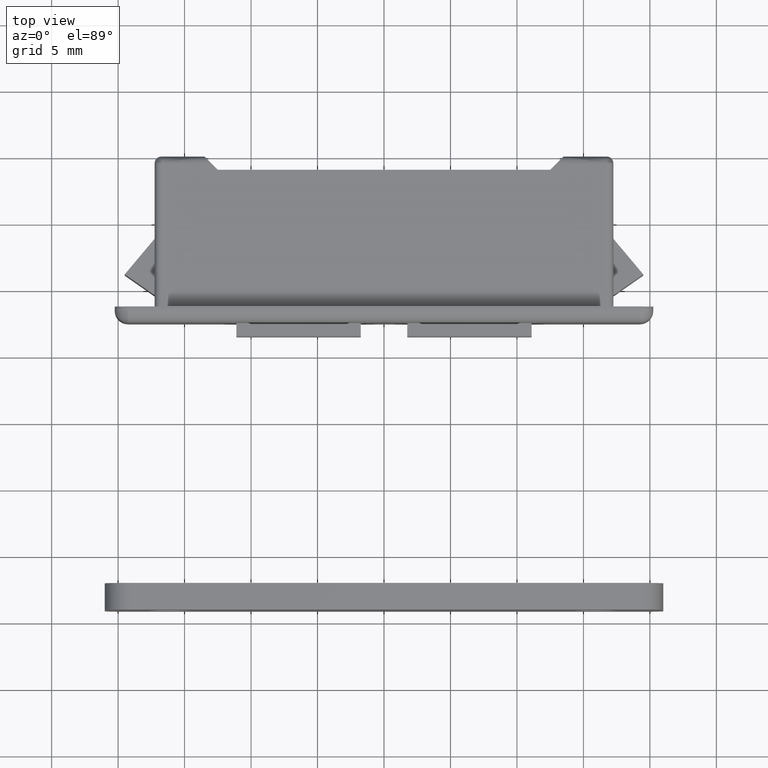
[diagram: clean part render]
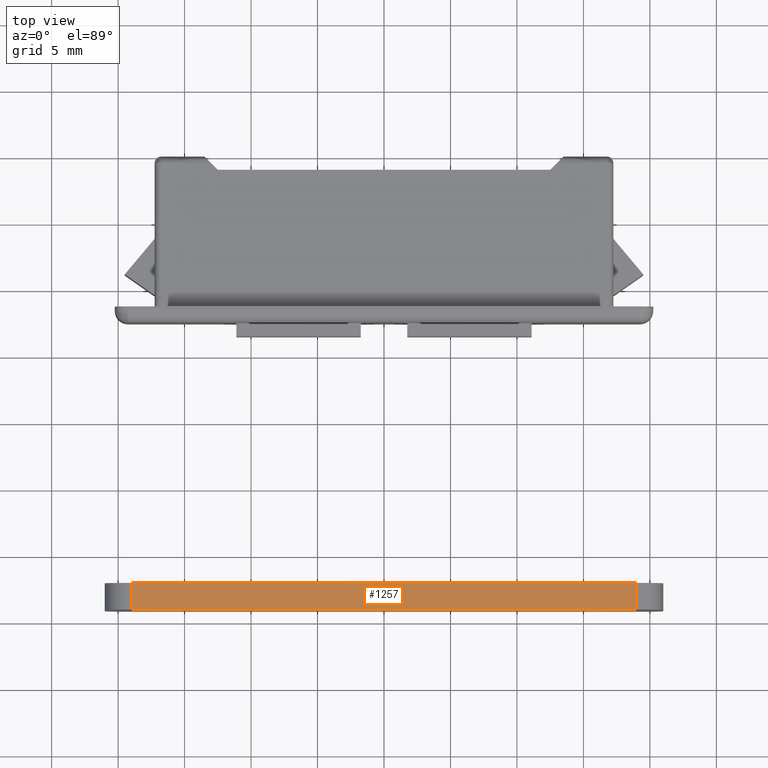
[diagram: same view with one face highlighted and labeled with its STEP entity id]
A machine part, top view. The second image highlights one B-rep face of the part: STEP entity #1257.
In plain terms, the highlighted face is a freeform B-spline surface patch.
Its self-contained STEP definition (entity closure, byte-faithful):
#1011=CARTESIAN_POINT('',(19.0,-32.095919398666737,-5.0));
#1012=VERTEX_POINT('',#1011);
#1026=CARTESIAN_POINT('',(-19.000000942477801,-32.095919398666737,-4.999999999999780));
#1027=VERTEX_POINT('',#1026);
#1028=CARTESIAN_POINT('',(-19.000000942477801,-32.095919398666737,-4.999999999999780));
#1029=CARTESIAN_POINT('',(19.0,-32.095919398666737,-5.0));
#1030=QUASI_UNIFORM_CURVE('',1,(#1028,#1029),.UNSPECIFIED.,.F.,.U.);
#1031=EDGE_CURVE('',#1027,#1012,#1030,.T.);
#1163=CARTESIAN_POINT('',(-19.000000942477801,-34.095919398666652,-4.999999999999780));
#1164=VERTEX_POINT('',#1163);
#1178=CARTESIAN_POINT('',(19.0,-34.095919398666652,-5.0));
#1179=VERTEX_POINT('',#1178);
#1180=CARTESIAN_POINT('',(-19.000000942477801,-34.095919398666652,-4.999999999999780));
#1181=CARTESIAN_POINT('',(19.0,-34.095919398666652,-5.0));
#1182=QUASI_UNIFORM_CURVE('',1,(#1180,#1181),.UNSPECIFIED.,.F.,.U.);
#1183=EDGE_CURVE('',#1164,#1179,#1182,.T.);
#1234=CARTESIAN_POINT('',(19.0,-34.095919398666652,-5.0));
#1235=CARTESIAN_POINT('',(19.0,-32.095919398666737,-5.0));
#1236=QUASI_UNIFORM_CURVE('',1,(#1234,#1235),.UNSPECIFIED.,.F.,.U.);
#1237=EDGE_CURVE('',#1179,#1012,#1236,.T.);
#1242=CARTESIAN_POINT('',(-20.898100202469550,-34.195820557974010,-5.0));
#1243=CARTESIAN_POINT('',(20.898100958724161,-34.195820557974010,-5.0));
#1244=CARTESIAN_POINT('',(-20.898100202469550,-31.996020492414949,-5.0));
#1245=CARTESIAN_POINT('',(20.898100958724161,-31.996020492414949,-5.0));
#1246=B_SPLINE_SURFACE_WITH_KNOTS('',1,1,((#1242,#1244),(#1243,#1245)),.UNSPECIFIED.,.F.,.F.,.U.,(2,2),(2,2),(0.0,41.796201161193707),(0.0,2.199800065559057),.UNSPECIFIED.);
#1247=ORIENTED_EDGE('',*,*,#1031,.T.);
#1248=ORIENTED_EDGE('',*,*,#1237,.F.);
#1249=ORIENTED_EDGE('',*,*,#1183,.F.);
#1250=CARTESIAN_POINT('',(-19.000000942477801,-34.095919398666652,-4.999999999999780));
#1251=CARTESIAN_POINT('',(-19.000000942477801,-32.095919398666737,-4.999999999999780));
#1252=QUASI_UNIFORM_CURVE('',1,(#1250,#1251),.UNSPECIFIED.,.F.,.U.);
#1253=EDGE_CURVE('',#1164,#1027,#1252,.T.);
#1254=ORIENTED_EDGE('',*,*,#1253,.T.);
#1255=EDGE_LOOP('',(#1247,#1248,#1249,#1254));
#1256=FACE_OUTER_BOUND('',#1255,.T.);
#1257=ADVANCED_FACE('',(#1256),#1246,.F.);